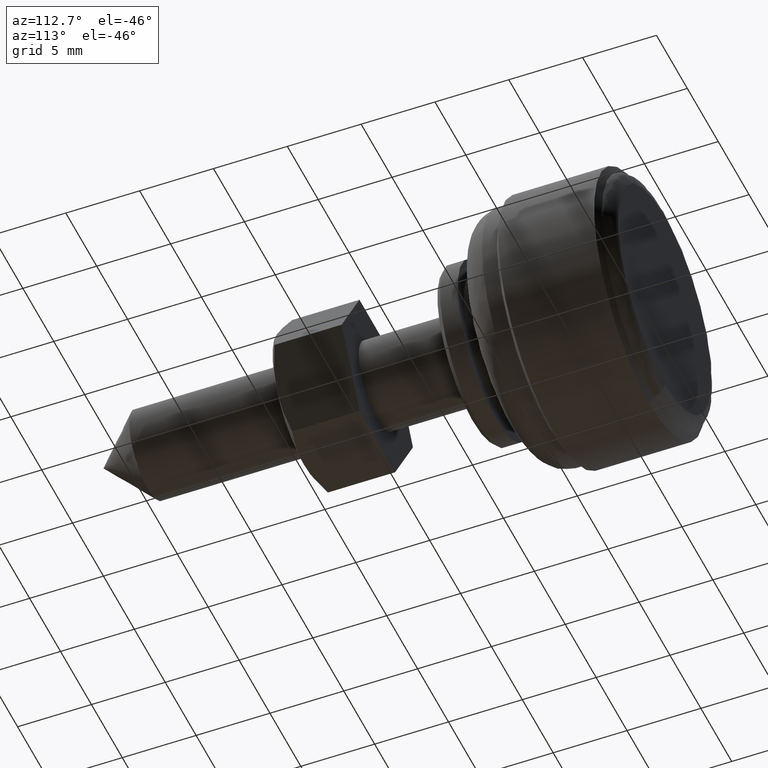
[diagram: clean part render]
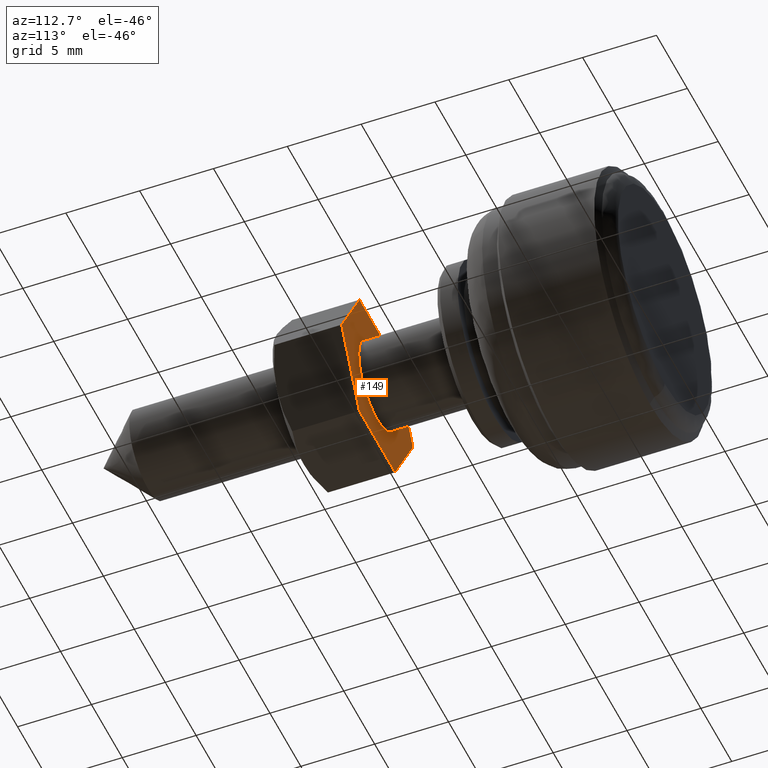
[diagram: same view with one face highlighted and labeled with its STEP entity id]
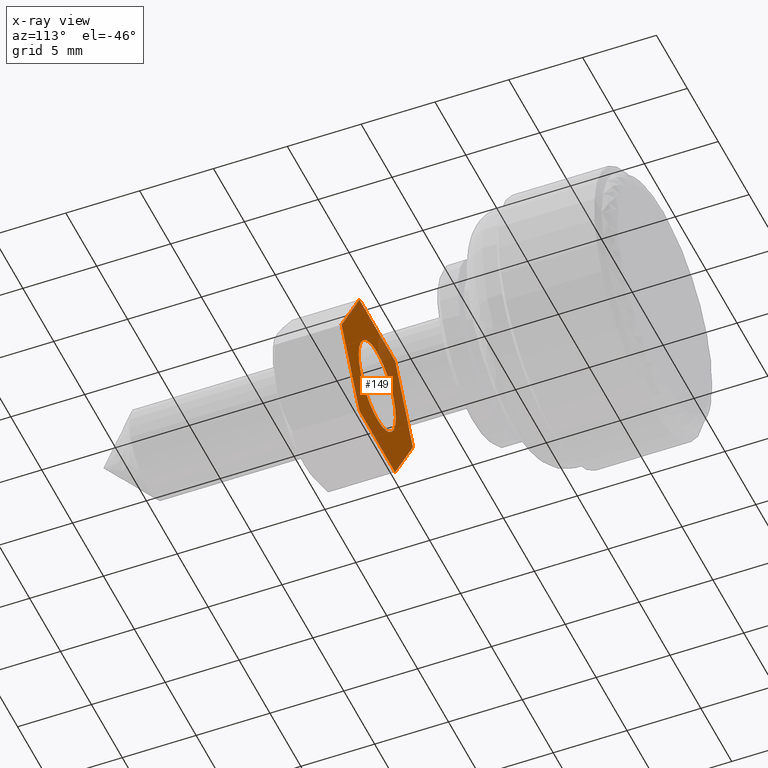
[diagram: x-ray of the same camera — body ghosted, the highlighted face saturated]
A machine part, auxiliary view. The second image highlights one B-rep face of the part: STEP entity #149.
The next image is the same camera in x-ray: the body ghosted, the highlighted face saturated — about 21% of this face is hidden behind the body in this view.
In plain terms, the highlighted planar face has unit normal (0, -1, 0).
Its self-contained STEP definition (entity closure, byte-faithful):
#149=ADVANCED_FACE('',(#529,#530),#528,.F.);
#528=PLANE('',#911);
#529=FACE_OUTER_BOUND('',#912,.T.);
#530=FACE_BOUND('',#913,.T.);
#908=CARTESIAN_POINT('',(-6.92820323028E+00,6.00000000000E+00,0.00000000000E+00));
#909=DIRECTION('',(0.00000000000E+00,0.00000000000E+00,1.00000000000E+00));
#910=DIRECTION('',(0.00000000000E+00,-1.00000000000E+00,0.00000000000E+00));
#911=AXIS2_PLACEMENT_3D('',#908,#909,#910);
#912=EDGE_LOOP('',(#1089,#1090,#1091,#1092,#1093,#1094));
#913=EDGE_LOOP('',(#1095,#1096,#1097));
#1089=ORIENTED_EDGE('',*,*,#1183,.F.);
#1090=ORIENTED_EDGE('',*,*,#1185,.F.);
#1091=ORIENTED_EDGE('',*,*,#1187,.F.);
#1092=ORIENTED_EDGE('',*,*,#1190,.F.);
#1093=ORIENTED_EDGE('',*,*,#1194,.F.);
#1094=ORIENTED_EDGE('',*,*,#1196,.F.);
#1095=ORIENTED_EDGE('',*,*,#1197,.T.);
#1096=ORIENTED_EDGE('',*,*,#1198,.T.);
#1097=ORIENTED_EDGE('',*,*,#1199,.T.);
#1183=EDGE_CURVE('',#1653,#1646,#1660,.T.);
#1185=EDGE_CURVE('',#1666,#1653,#1673,.T.);
#1187=EDGE_CURVE('',#1679,#1666,#1686,.T.);
#1190=EDGE_CURVE('',#1699,#1679,#1706,.T.);
#1194=EDGE_CURVE('',#1725,#1699,#1732,.T.);
#1196=EDGE_CURVE('',#1646,#1725,#1744,.T.);
#1197=EDGE_CURVE('',#1750,#1751,#1752,.T.);
#1198=EDGE_CURVE('',#1751,#1758,#1759,.T.);
#1199=EDGE_CURVE('',#1758,#1750,#1765,.T.);
#1646=VERTEX_POINT('',#2074);
#1653=VERTEX_POINT('',#2078);
#1660=LINE('',#2082,#2083);
#1666=VERTEX_POINT('',#2085);
#1673=LINE('',#2089,#2090);
#1679=VERTEX_POINT('',#2092);
#1686=LINE('',#2096,#2097);
#1699=VERTEX_POINT('',#2106);
#1706=LINE('',#2110,#2111);
#1725=VERTEX_POINT('',#2126);
#1732=LINE('',#2130,#2131);
#1744=LINE('',#2137,#2138);
#1750=VERTEX_POINT('',#2140);
#1751=VERTEX_POINT('',#2141);
#1752=CIRCLE('',#2145,3.00000000000E+00);
#1758=VERTEX_POINT('',#2146);
#1759=CIRCLE('',#2150,3.00000000000E+00);
#1765=CIRCLE('',#2154,3.00000000000E+00);
#2074=CARTESIAN_POINT('',(-2.88675134595E+00,5.00000000000E+00,0.00000000000E+00));
#2078=CARTESIAN_POINT('',(2.88675134595E+00,5.00000000000E+00,0.00000000000E+00));
#2082=CARTESIAN_POINT('',(2.88675134595E+00,5.00000000000E+00,0.00000000000E+00));
#2083=VECTOR('',#2084,5.77350269190E+00);
#2084=DIRECTION('',(-1.00000000000E+00,0.00000000000E+00,0.00000000000E+00));
#2085=CARTESIAN_POINT('',(5.77350269190E+00,-3.10862446895E-15,0.00000000000E+00));
#2089=CARTESIAN_POINT('',(5.77350269190E+00,-2.10942374679E-15,0.00000000000E+00));
#2090=VECTOR('',#2091,5.77350269190E+00);
#2091=DIRECTION('',(-5.00000000000E-01,8.66025403784E-01,0.00000000000E+00));
#2092=CARTESIAN_POINT('',(2.88675134595E+00,-5.00000000000E+00,0.00000000000E+00));
#2096=CARTESIAN_POINT('',(2.88675134595E+00,-5.00000000000E+00,0.00000000000E+00));
#2097=VECTOR('',#2098,5.77350269190E+00);
#2098=DIRECTION('',(5.00000000000E-01,8.66025403784E-01,0.00000000000E+00));
#2106=CARTESIAN_POINT('',(-2.88675134595E+00,-5.00000000000E+00,0.00000000000E+00));
#2110=CARTESIAN_POINT('',(-2.88675134595E+00,-5.00000000000E+00,0.00000000000E+00));
#2111=VECTOR('',#2112,5.77350269190E+00);
#2112=DIRECTION('',(1.00000000000E+00,0.00000000000E+00,0.00000000000E+00));
#2126=CARTESIAN_POINT('',(-5.77350269190E+00,8.88178419700E-16,0.00000000000E+00));
#2130=CARTESIAN_POINT('',(-5.77350269190E+00,8.88178419700E-16,0.00000000000E+00));
#2131=VECTOR('',#2132,5.77350269190E+00);
#2132=DIRECTION('',(5.00000000000E-01,-8.66025403784E-01,0.00000000000E+00));
#2137=CARTESIAN_POINT('',(-2.88675134595E+00,5.00000000000E+00,0.00000000000E+00));
#2138=VECTOR('',#2139,5.77350269190E+00);
#2139=DIRECTION('',(-5.00000000000E-01,-8.66025403784E-01,0.00000000000E+00));
#2140=CARTESIAN_POINT('',(0.00000000000E+00,-3.00000000000E+00,0.00000000000E+00));
#2141=CARTESIAN_POINT('',(2.99999998384E+00,3.11342264080E-04,0.00000000000E+00));
#2142=CARTESIAN_POINT('',(0.00000000000E+00,0.00000000000E+00,0.00000000000E+00));
#2143=DIRECTION('',(0.00000000000E+00,0.00000000000E+00,1.00000000000E+00));
#2144=DIRECTION('',(-1.22460635382E-16,-1.00000000000E+00,0.00000000000E+00));
#2145=AXIS2_PLACEMENT_3D('',#2142,#2143,#2144);
#2146=CARTESIAN_POINT('',(-3.00000000000E+00,-1.19570834577E-11,0.00000000000E+00));
#2147=CARTESIAN_POINT('',(0.00000000000E+00,0.00000000000E+00,0.00000000000E+00));
#2148=DIRECTION('',(0.00000000000E+00,0.00000000000E+00,1.00000000000E+00));
#2149=DIRECTION('',(-1.22460635382E-16,-1.00000000000E+00,0.00000000000E+00));
#2150=AXIS2_PLACEMENT_3D('',#2147,#2148,#2149);
#2151=CARTESIAN_POINT('',(0.00000000000E+00,0.00000000000E+00,0.00000000000E+00));
#2152=DIRECTION('',(0.00000000000E+00,0.00000000000E+00,1.00000000000E+00));
#2153=DIRECTION('',(-1.22460635382E-16,-1.00000000000E+00,0.00000000000E+00));
#2154=AXIS2_PLACEMENT_3D('',#2151,#2152,#2153);